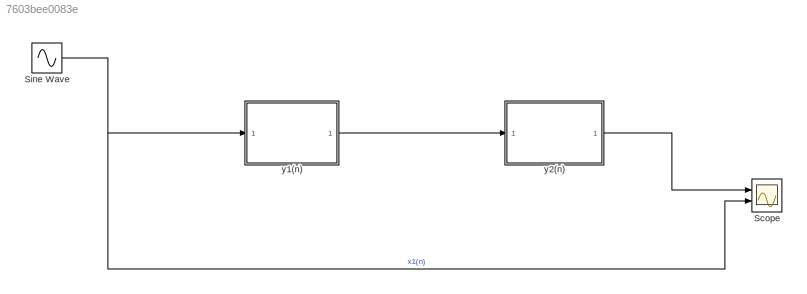
MODEL slx_7603bee0083e
KIND model
CONFIG AbsTol = auto
CONFIG EnableMultiTasking = off
CONFIG FixedStep = auto
CONFIG MaxStep = auto
CONFIG MinStep = auto
CONFIG RelTol = 1e-3
CONFIG SampleTimeConstraint = Unconstrained
CONFIG SolverName = VariableStepAuto
CONFIG StartTime = 0.0
CONFIG StopTime = 10.0
BLOCK [Scope] Scope
  Floating = off
  NumInputPorts = 2
  Ports = [2]
  ScopeSpecificationString = Simulink.scopes.TimeScopeBlockCfg('CurrentConfiguration', extmgr.ConfigurationSet(extmgr.Configuration('Core','General UI',true),extmgr.Configuration('Core','Source UI',true),extmgr.Configuration('Sources','WiredSimulink',true),extmgr.Configuration('Visuals','Time Domain',true,'SerializedDisplays',{struct('MinYLimReal','-2.73796','MaxYLimReal','2.74215','YLabelReal','','MinYLimMag','0.00000','MaxY...<+1399ch>
BLOCK [Sin] Sine Wave
  Ports = [0, 1]
  SampleTime = 0
BLOCK [ModelReference] y1(n)
  ModelNameDialog = y1_n
  ModelReferenceVersion = 1.2
  Ports = [1, 1]
BLOCK [ModelReference] y2(n)
  ModelNameDialog = y2_n
  ModelReferenceVersion = 1.2
  Ports = [1, 1]
NET Sine Wave:1 -> Scope:2, y1(n):1
LINE y1(n):1 -> y2(n):1
LINE y2(n):1 -> Scope:1
note: NET lines group one-source signal fan-out (src -> all destinations, sorted); 1:1 wires keep LINE
